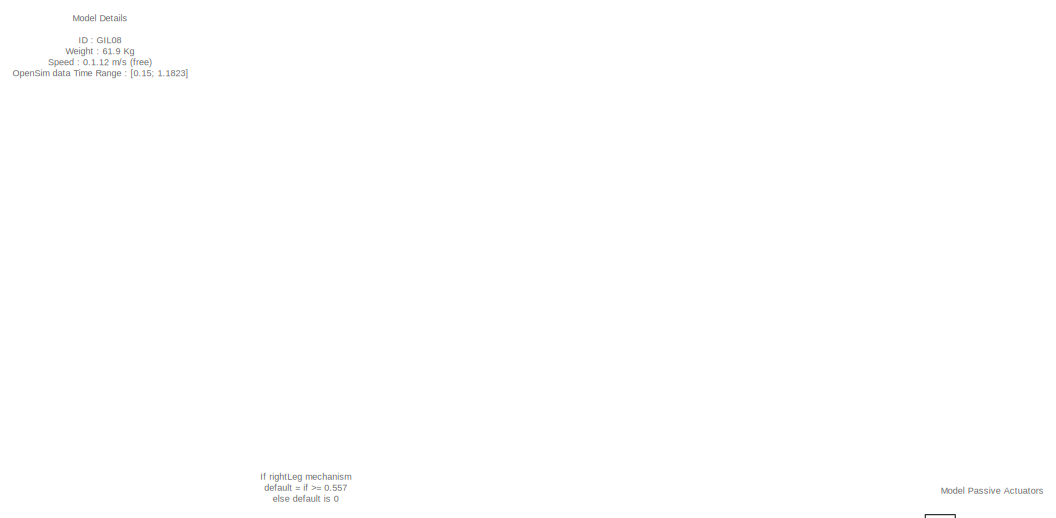
[diagram: root canvas - part 1/3, top left region]
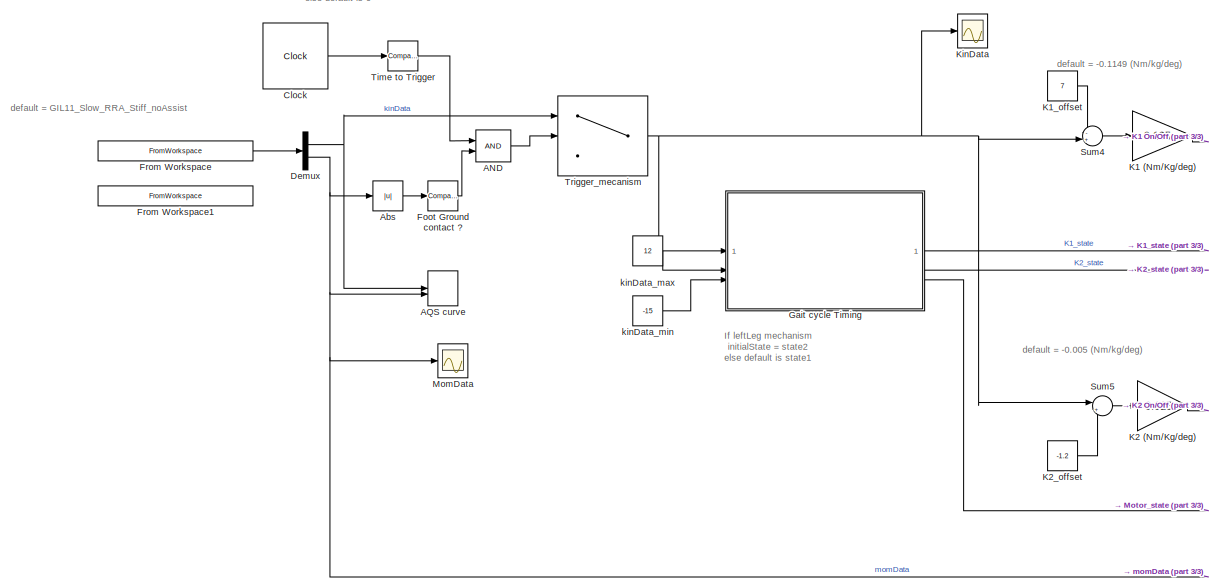
[diagram: root canvas - part 2/3, bottom left region]
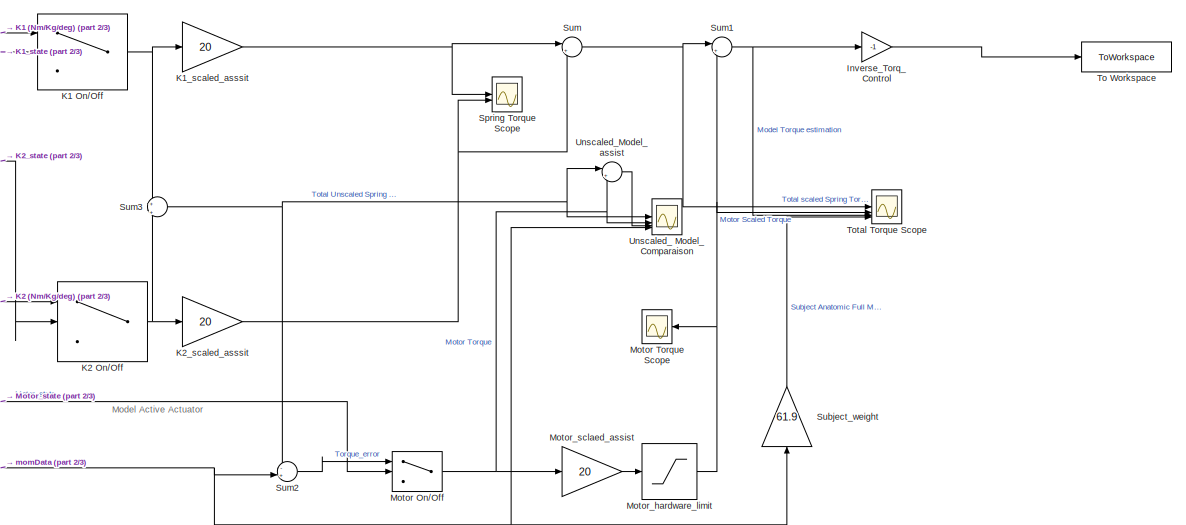
[diagram: root canvas - part 3/3, bottom right region]
MODEL slx_bc5d2cb2194c
KIND model
CONFIG AbsTol = auto
CONFIG EnableMultiTasking = off
CONFIG FixedStep = auto
CONFIG MaxStep = 0.016
CONFIG MinStep = auto
CONFIG PreLoadFcn = kinData_max = 0;\nkinData_min = 0;
CONFIG RelTol = 1e-3
CONFIG SampleTimeConstraint = Unconstrained
CONFIG SolverName = VariableStepAuto
CONFIG StartTime = 0.15
CONFIG StopTime = 1.1823
BLOCK [Logic] AND
  AllPortsSameDT = off
  IconShape = distinctive
  OutDataTypeStr = boolean
BLOCK [Record] AQS curve
  CompatibilityTag = XY
  FileSettingsInternal = {"entries":[{"content":{"excelSettings":{"content":{},"type":"Streamout.ExcelSettings"}},"type":"Streamout.FileSettingStorage","uuid":""}],"packageUris":["http:\/\/schema.mathworks.com\/mf0\/streamout_blocks\/R2020a"],"version":"1.0"}
  Layout = [1 1]
  SignalsInternal = {"entries":[{"content":{"signals":[{"content":{"blockPath":[],"dimensions":[1],"domain":"","lineColor":"#22b573","port":1,"sid":[""],"signalID":1,"signalName":"kinData"},"type":"RecordBlkView.Signal","uuid":""},{"content":{"blockPath":[],"dimensions":[1],"domain":"","lineColor":"#0072bd","port":2,"sid":[""],"signalID":2,"signalName":"momData"},"type":"RecordBlkView.Signal","uuid":""}]},"type":"Rec...<+132ch>
  VisualizationBindings = {"xyplotplugin":{"info":[{"series":[],"subplotID":1}]}}
  st = -1
BLOCK [Abs] Abs
  Commented = through
  SaturateOnIntegerOverflow = off
BLOCK [Clock] Clock
BLOCK [Demux] Demux
  Outputs = 2
BLOCK [Reference] Foot Ground contact ?  REF=simulink/Logic and Bit
Operations/Compare
To Constant
  Commented = through
  SourceBlock = simulink/Logic and Bit\nOperations/Compare\nTo Constant
  SourceType = Compare To Constant
BLOCK [FromWorkspace] From Workspace
  OutputAfterFinalValue = Holding final value
  VariableName = GIL08_free_rightAnk_RRA
BLOCK [FromWorkspace] From Workspace1
  OutputAfterFinalValue = Holding final value
  VariableName = GIL08_free_leftAnk_RRA
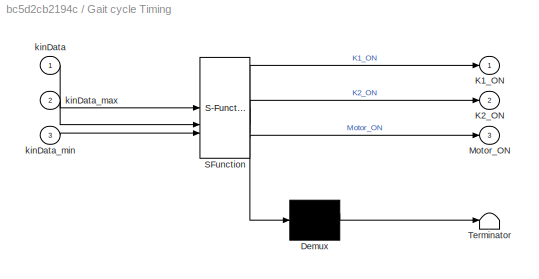
BLOCK [SubSystem] Gait cycle Timing
  ErrorFcn = Stateflow.Translate.translate
  PermitHierarchicalResolution = ExplicitOnly
  SFBlockType = State Transition Table
  TreatAsAtomicUnit = on
BLOCK [Demux] Gait cycle Timing/ Demux 
  Outputs = 1
BLOCK [S-Function] Gait cycle Timing/ SFunction 
  EnableBusSupport = on
  FunctionName = sf_sfun
  PortCounts = [3 4]
  SFcnIsStateOwnerBlock = off
  SFunctionDeploymentMode = off
  Tag = Stateflow S-Function 4
BLOCK [Terminator] Gait cycle Timing/ Terminator 
BLOCK [Outport] Gait cycle Timing/K1_ON
BLOCK [Outport] Gait cycle Timing/K2_ON
  Port = 2
BLOCK [Outport] Gait cycle Timing/Motor_ON
  Port = 3
BLOCK [Inport] Gait cycle Timing/kinData
BLOCK [Inport] Gait cycle Timing/kinData_max
  Port = 2
BLOCK [Inport] Gait cycle Timing/kinData_min
  Port = 3
BLOCK [Gain] Inverse_Torq_Control
  Gain = -1
BLOCK [Gain] K1 (Nm//Kg//deg)
  Gain = -0.135
BLOCK [Switch] K1 On//Off
  Criteria = u2 > Threshold
  InputSameDT = off
  SaturateOnIntegerOverflow = off
BLOCK [Constant] K1_offset 
  Value = 7
BLOCK [Gain] K1_scaled_asssit
  Gain = 20
BLOCK [Gain] K2 (Nm//Kg//deg)
  Gain = -0.015
BLOCK [Switch] K2 On//Off
  Criteria = u2 > Threshold
  InputSameDT = off
  SaturateOnIntegerOverflow = off
BLOCK [Constant] K2_offset
  Value = -1.2
BLOCK [Gain] K2_scaled_asssit
  Gain = 20
BLOCK [Scope] KinData
  Floating = off
  NumInputPorts = 1
  ScopeSpecificationString = Simulink.scopes.TimeScopeBlockCfg('CurrentConfiguration', extmgr.ConfigurationSet(extmgr.Configuration('Core','General UI',true,'ShowStatusbar',false),extmgr.Configuration('Core','Source UI',true),extmgr.Configuration('Sources','WiredSimulink',true,'DataLoggingVariableName','ScopeData2'),extmgr.Configuration('Visuals','Time Domain',true,'SerializedDisplays',{struct('MinYLimReal','-17.8557','MaxYLi...<+1550ch>
BLOCK [Scope] MomData 
  Floating = off
  NumInputPorts = 1
  ScopeSpecificationString = Simulink.scopes.TimeScopeBlockCfg('CurrentConfiguration', extmgr.ConfigurationSet(extmgr.Configuration('Core','General UI',true,'ShowStatusbar',false),extmgr.Configuration('Core','Source UI',true),extmgr.Configuration('Sources','WiredSimulink',true,'DataLoggingVariableName','ScopeData1'),extmgr.Configuration('Visuals','Time Domain',true,'SerializedDisplays',{struct('MinYLimReal','-0.16962','MaxYLi...<+1515ch>
BLOCK [Switch] Motor On//Off
  Criteria = u2 > Threshold
  InputSameDT = off
  SaturateOnIntegerOverflow = off
BLOCK [Scope] Motor Torque Scope
  Floating = off
  NumInputPorts = 1
  ScopeSpecificationString = Simulink.scopes.TimeScopeBlockCfg('CurrentConfiguration', extmgr.ConfigurationSet(extmgr.Configuration('Core','General UI',true,'ShowStatusbar',false),extmgr.Configuration('Core','Source UI',true),extmgr.Configuration('Sources','WiredSimulink',true,'DataLoggingVariableName','ScopeData1'),extmgr.Configuration('Visuals','Time Domain',true,'SerializedDisplays',{struct('MinYLimReal','-16.00000','MaxYL...<+1613ch>
BLOCK [Saturate] Motor_hardware_limit
  LowerLimit = -16
  UpperLimit = 16
BLOCK [Gain] Motor_sclaed_assist
  Gain = 20
  NameLocation = top
BLOCK [Scope] Spring Torque Scope
  Floating = off
  NumInputPorts = 2
  ScopeSpecificationString = Simulink.scopes.TimeScopeBlockCfg('CurrentConfiguration', extmgr.ConfigurationSet(extmgr.Configuration('Core','General UI',true),extmgr.Configuration('Core','Source UI',true),extmgr.Configuration('Sources','WiredSimulink',true,'DataLoggingVariableName','ScopeData1'),extmgr.Configuration('Visuals','Time Domain',true,'SerializedDisplays',{struct('MinYLimReal','-11.82291','MaxYLimReal','7.27047','YLa...<+1752ch>
BLOCK [Gain] Subject_weight
  Gain = 61.9
  NameLocation = right
BLOCK [Sum] Sum
  Inputs = |++
BLOCK [Sum] Sum1
  Inputs = |++
BLOCK [Sum] Sum2
  Inputs = -+|
  NameLocation = top
BLOCK [Sum] Sum3
  Inputs = +|+
BLOCK [Sum] Sum4
  Inputs = -+|
BLOCK [Sum] Sum5
  Inputs = |+-
BLOCK [Reference] Time to Trigger  REF=simulink/Logic and Bit
Operations/Compare
To Constant
  SourceBlock = simulink/Logic and Bit\nOperations/Compare\nTo Constant
  SourceType = Compare To Constant
BLOCK [ToWorkspace] To Workspace
  FixptAsFi = on
  MaxDataPoints = inf
  SampleTime = -1
  SaveFormat = Timeseries
  VariableName = mechanismOutput
BLOCK [Scope] Total Torque Scope
  Floating = off
  NumInputPorts = 4
  ScopeSpecificationString = Simulink.scopes.TimeScopeBlockCfg('CurrentConfiguration', extmgr.ConfigurationSet(extmgr.Configuration('Core','General UI',true),extmgr.Configuration('Core','Source UI',true),extmgr.Configuration('Sources','WiredSimulink',true),extmgr.Configuration('Visuals','Time Domain',true,'SerializedDisplays',{struct('MinYLimReal','-122.94886','MaxYLimReal','16.93282','YLabelReal','','MinYLimMag',' 0.00000','...<+1635ch>
BLOCK [Switch] Trigger_mecanism
  Criteria = u2 > Threshold
  InputSameDT = off
  SaturateOnIntegerOverflow = off
BLOCK [Scope] Unscaled_ Model_Comparaison
  Floating = off
  NumInputPorts = 4
  ScopeSpecificationString = Simulink.scopes.TimeScopeBlockCfg('CurrentConfiguration', extmgr.ConfigurationSet(extmgr.Configuration('Core','General UI',true,'FigureColor',[0 0 0],'ShowStatusbar',false),extmgr.Configuration('Core','Source UI',true),extmgr.Configuration('Sources','WiredSimulink',true,'DataLoggingVariableName','ScopeData1'),extmgr.Configuration('Visuals','Time Domain',true,'SerializedDisplays',{struct('MinYLimRe...<+1761ch>
BLOCK [Sum] Unscaled_Model_assist
  Inputs = |++
BLOCK [Constant] kinData_max 
  Value = 12
BLOCK [Constant] kinData_min 
  Value = -15
ANNOTATION (root): If leftLeg mechanism initialState = state2 else default is state1
ANNOTATION (root): If rightLeg mechanism default = if >= 0.557 else default is 0
ANNOTATION (root): Model Active Actuator
ANNOTATION (root): Model Details ID : GIL08 Weight : 61.9 Kg Speed : 0.1.12 m/s (free) OpenSim data Time Range : [0.15; 1.1823] Load : None Mechanism : 2 linear springs + 1 optionnal elec. actuator. (1Nm peak_to_peak)
ANNOTATION (root): Model Passive Actuators
ANNOTATION (root): default = -0.005 (Nm/kg/deg)
ANNOTATION (root): default = -0.1149 (Nm/kg/deg)
ANNOTATION (root): default = GIL11_Slow_RRA_Stiff_noAssist
LINE AND:1 -> Trigger_mecanism:2
LINE Abs:1 -> Foot Ground contact ?:1
LINE Clock:1 -> Time to Trigger:1
NET Demux:1 -> AQS curve:1, Trigger_mecanism:1
NET Demux:2 -> AQS curve:2, Abs:1, MomData :1, Subject_weight:1, Sum2:2, Unscaled_ Model_Comparaison:4
LINE Foot Ground contact ?:1 -> AND:2
LINE From Workspace:1 -> Demux:1
LINE Gait cycle Timing:1 -> K1 On//Off:2
LINE Gait cycle Timing:2 -> K2 On//Off:2
LINE Gait cycle Timing:3 -> Motor On//Off:2
LINE Inverse_Torq_Control:1 -> To Workspace:1
LINE K1 (Nm//Kg//deg):1 -> K1 On//Off:1
NET K1 On//Off:1 -> K1_scaled_asssit:1, Sum3:1
LINE K1_offset :1 -> Sum4:1
NET K1_scaled_asssit:1 -> Spring Torque Scope:1, Sum:1
LINE K2 (Nm//Kg//deg):1 -> K2 On//Off:1
NET K2 On//Off:1 -> K2_scaled_asssit:1, Sum3:2
LINE K2_offset:1 -> Sum5:2
NET K2_scaled_asssit:1 -> Spring Torque Scope:2, Sum:2
NET Motor On//Off:1 -> Motor_sclaed_assist:1, Unscaled_ Model_Comparaison:2, Unscaled_Model_assist:2
NET Motor_hardware_limit:1 -> Motor Torque Scope:1, Sum1:2, Total Torque Scope:2
LINE Motor_sclaed_assist:1 -> Motor_hardware_limit:1
LINE Subject_weight:1 -> Total Torque Scope:4
NET Sum1:1 -> Inverse_Torq_Control:1, Total Torque Scope:3
LINE Sum2:1 -> Motor On//Off:1
NET Sum3:1 -> Sum2:1, Unscaled_ Model_Comparaison:1, Unscaled_Model_assist:1
LINE Sum4:1 -> K1 (Nm//Kg//deg):1
LINE Sum5:1 -> K2 (Nm//Kg//deg):1
NET Sum:1 -> Sum1:1, Total Torque Scope:1
LINE Time to Trigger:1 -> AND:1
NET Trigger_mecanism:1 -> Gait cycle Timing:1, KinData:1, Sum4:2, Sum5:1
LINE Unscaled_Model_assist:1 -> Unscaled_ Model_Comparaison:3
LINE kinData_max :1 -> Gait cycle Timing:2
LINE kinData_min :1 -> Gait cycle Timing:3
note: NET lines group one-source signal fan-out (src -> all destinations, sorted); 1:1 wires keep LINE
CHART Gait cycle Timing states=6 transitions=9
  STATE_LABEL 'state1\n\nK2_ON = 0'
  STATE_LABEL 'state11\n\n'
  STATE_LABEL 'state2\n\nK2_ON = 1\nMotor_ON = 1'
  STATE_LABEL 'state3'
  STATE_LABEL 'state4'
  STATE_LABEL 'state5'
CHART  states=0 transitions=0
